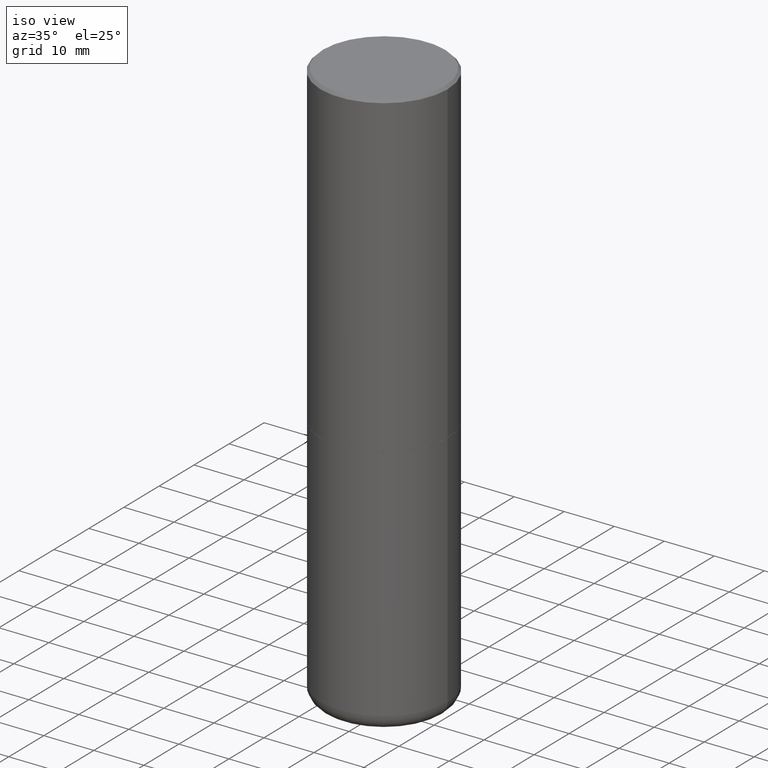
[diagram: clean part render]
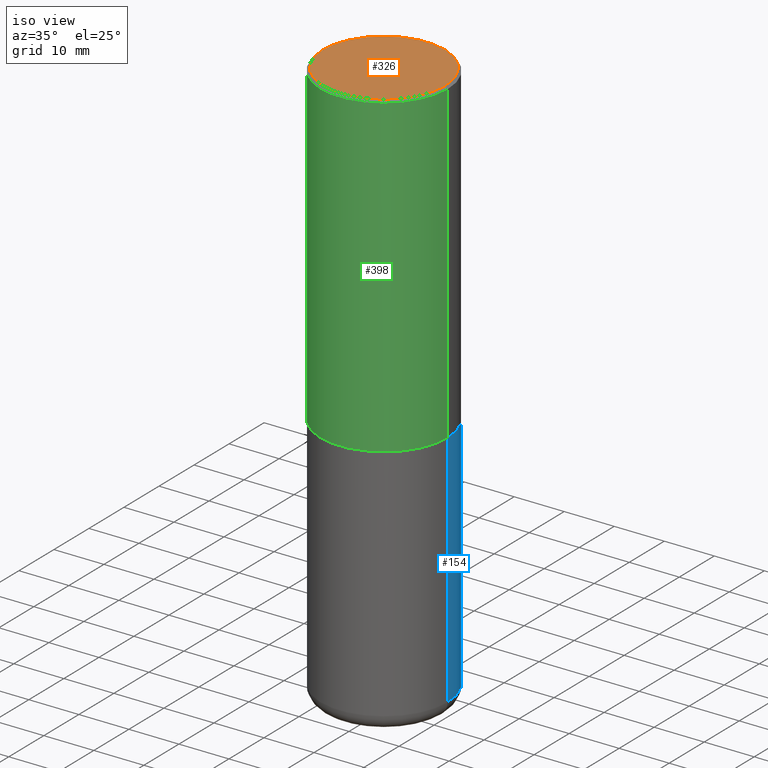
[diagram: same view with three faces highlighted in distinct colors, each labeled with its STEP entity id]
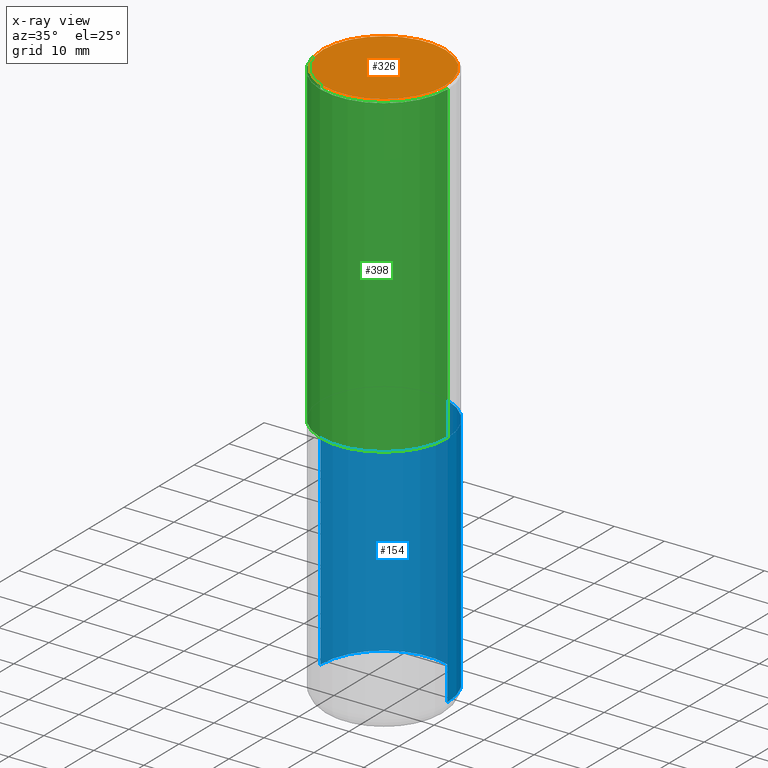
[diagram: x-ray of the same camera — body ghosted, the three highlighted faces saturated]
A machine part, iso view with three faces highlighted in distinct colors.
The next image is the same camera in x-ray (body ghosted, the three faces saturated) — at least one of them is partly hidden behind the body in this view.
Their STEP definitions:

[orange] entity #326 — the highlighted planar face has unit normal (0, -0, -1).
#38 = PLANE ( 'NONE',  #85 ) ;
#58 = EDGE_CURVE ( 'NONE', #250, #240, #161, .T. ) ;
#63 = FACE_OUTER_BOUND ( 'NONE', #364, .T. ) ;
#72 = ORIENTED_EDGE ( 'NONE', *, *, #293, .T. ) ;
#83 = DIRECTION ( 'NONE',  ( 1.000000000000000000, -6.982962677686266711E-15, 4.878011538933552085E-29 ) ) ;
#85 = AXIS2_PLACEMENT_3D ( 'NONE', #158, #219, #291 ) ;
#87 = ORIENTED_EDGE ( 'NONE', *, *, #58, .T. ) ;
#122 = DIRECTION ( 'NONE',  ( -2.445468806185136597E-29, 3.491481338843145583E-15, 1.000000000000000000 ) ) ;
#136 = CIRCLE ( 'NONE', #339, 0.4799999999999998157 ) ;
#158 = CARTESIAN_POINT ( 'NONE',  ( 3.351822085289406364E-15, 0.4799999999999998157, -1.547855667941696890E-15 ) ) ;
#161 = CIRCLE ( 'NONE', #282, 0.4799999999999998157 ) ;
#195 = CARTESIAN_POINT ( 'NONE',  ( 0.4799999999999998157, -3.396558832296481310E-15, 2.561107494060482809E-16 ) ) ;
#216 = CARTESIAN_POINT ( 'NONE',  ( -6.263108486011318684E-45, 8.942059022282684186E-31, 2.561107494060246644E-16 ) ) ;
#219 = DIRECTION ( 'NONE',  ( 2.438088387897960049E-29, -3.491481338843145188E-15, -1.000000000000000000 ) ) ;
#240 = VERTEX_POINT ( 'NONE', #195 ) ;
#243 = DIRECTION ( 'NONE',  ( 1.000000000000000000, -6.982962677686266711E-15, 4.878011538933552085E-29 ) ) ;
#247 = CARTESIAN_POINT ( 'NONE',  ( -6.263108486011318684E-45, 8.942059022282684186E-31, 2.561107494060246644E-16 ) ) ;
#250 = VERTEX_POINT ( 'NONE', #263 ) ;
#263 = CARTESIAN_POINT ( 'NONE',  ( -0.4799999999999998157, 3.386736898677839197E-15, 2.561107494060010972E-16 ) ) ;
#282 = AXIS2_PLACEMENT_3D ( 'NONE', #247, #371, #83 ) ;
#291 = DIRECTION ( 'NONE',  ( -1.000000000000000000, 6.982962677686265922E-15, -4.876176775795935793E-29 ) ) ;
#293 = EDGE_CURVE ( 'NONE', #240, #250, #136, .T. ) ;
#326 = ADVANCED_FACE ( 'NONE', ( #63 ), #38, .F. ) ;
#339 = AXIS2_PLACEMENT_3D ( 'NONE', #216, #122, #243 ) ;
#364 = EDGE_LOOP ( 'NONE', ( #87, #72 ) ) ;
#371 = DIRECTION ( 'NONE',  ( -2.445468806185136597E-29, 3.491481338843145583E-15, 1.000000000000000000 ) ) ;

[blue] entity #154 — the highlighted cylindrical surface (partial cylindrical patch) has radius 12.7 mm, axis along (-0, 0, 1).
#2 = VECTOR ( 'NONE', #333, 39.37007874015748143 ) ;
#5 = CARTESIAN_POINT ( 'NONE',  ( -0.4999999999999998335, -1.173997458533247776E-14, -4.379999999999999893 ) ) ;
#47 = DIRECTION ( 'NONE',  ( -2.445468806185136597E-29, 3.491481338843145583E-15, 1.000000000000000000 ) ) ;
#59 = CARTESIAN_POINT ( 'NONE',  ( 0.000000000000000000, 0.000000000000000000, 0.000000000000000000 ) ) ;
#79 = VERTEX_POINT ( 'NONE', #321 ) ;
#91 = CIRCLE ( 'NONE', #156, 0.5000000000000001110 ) ;
#100 = CARTESIAN_POINT ( 'NONE',  ( 6.113672015462842613E-29, -8.728703347107864943E-15, -2.500000000000000000 ) ) ;
#103 = ORIENTED_EDGE ( 'NONE', *, *, #197, .T. ) ;
#105 = CARTESIAN_POINT ( 'NONE',  ( -0.5000000000000000000, 3.552713678800500929E-15, -2.459467545127452891E-29 ) ) ;
#108 = CARTESIAN_POINT ( 'NONE',  ( 1.071115337109089838E-28, -1.529268826413297711E-14, -4.379999999999999893 ) ) ;
#113 = LINE ( 'NONE', #105, #259 ) ;
#126 = ORIENTED_EDGE ( 'NONE', *, *, #366, .T. ) ;
#142 = DIRECTION ( 'NONE',  ( -2.445468806185136597E-29, 3.491481338843145583E-15, 1.000000000000000000 ) ) ;
#154 = ADVANCED_FACE ( 'NONE', ( #387 ), #224, .T. ) ;
#156 = AXIS2_PLACEMENT_3D ( 'NONE', #108, #47, #212 ) ;
#169 = AXIS2_PLACEMENT_3D ( 'NONE', #59, #289, #319 ) ;
#183 = ORIENTED_EDGE ( 'NONE', *, *, #235, .F. ) ;
#186 = CIRCLE ( 'NONE', #325, 0.5000000000000000000 ) ;
#192 = CARTESIAN_POINT ( 'NONE',  ( -0.5000000000000000000, -8.457982126819920096E-15, -2.500000000000000000 ) ) ;
#197 = EDGE_CURVE ( 'NONE', #304, #307, #113, .T. ) ;
#202 = LINE ( 'NONE', #365, #2 ) ;
#212 = DIRECTION ( 'NONE',  ( 1.000000000000000000, -6.982962677686269077E-15, 0.000000000000000000 ) ) ;
#217 = ORIENTED_EDGE ( 'NONE', *, *, #382, .F. ) ;
#224 = CYLINDRICAL_SURFACE ( 'NONE', #169, 0.5000000000000000000 ) ;
#235 = EDGE_CURVE ( 'NONE', #245, #307, #186, .T. ) ;
#245 = VERTEX_POINT ( 'NONE', #298 ) ;
#259 = VECTOR ( 'NONE', #302, 39.37007874015748143 ) ;
#283 = EDGE_LOOP ( 'NONE', ( #126, #103, #183, #217 ) ) ;
#289 = DIRECTION ( 'NONE',  ( -2.445468806185136597E-29, 3.491481338843145583E-15, 1.000000000000000000 ) ) ;
#298 = CARTESIAN_POINT ( 'NONE',  ( 0.5000000000000000000, -1.222018468595099830E-14, -2.500000000000000000 ) ) ;
#299 = DIRECTION ( 'NONE',  ( 1.000000000000000000, -6.982962677686269077E-15, 0.000000000000000000 ) ) ;
#302 = DIRECTION ( 'NONE',  ( -2.445468806185136877E-29, 3.491481338843145188E-15, 1.000000000000000000 ) ) ;
#304 = VERTEX_POINT ( 'NONE', #5 ) ;
#307 = VERTEX_POINT ( 'NONE', #192 ) ;
#319 = DIRECTION ( 'NONE',  ( 1.000000000000000000, -6.982962677686266711E-15, 4.876176775795935793E-29 ) ) ;
#321 = CARTESIAN_POINT ( 'NONE',  ( 0.4999999999999998335, -1.878416960297611046E-14, -4.379999999999999893 ) ) ;
#325 = AXIS2_PLACEMENT_3D ( 'NONE', #100, #142, #299 ) ;
#333 = DIRECTION ( 'NONE',  ( -2.445468806185136877E-29, 3.491481338843145188E-15, 1.000000000000000000 ) ) ;
#365 = CARTESIAN_POINT ( 'NONE',  ( 0.5000000000000000000, -3.491481338843133355E-15, 2.438088387897967896E-29 ) ) ;
#366 = EDGE_CURVE ( 'NONE', #79, #304, #91, .T. ) ;
#382 = EDGE_CURVE ( 'NONE', #79, #245, #202, .T. ) ;
#387 = FACE_OUTER_BOUND ( 'NONE', #283, .T. ) ;

[green] entity #398 — the highlighted cylindrical surface (partial cylindrical patch) has radius 12.7 mm, axis along (-0, 0, 1).
#21 = DIRECTION ( 'NONE',  ( -2.445468806185136597E-29, 3.491481338843145583E-15, 1.000000000000000000 ) ) ;
#22 = VERTEX_POINT ( 'NONE', #25 ) ;
#25 = CARTESIAN_POINT ( 'NONE',  ( -0.5000000000000002220, -8.448070674724393209E-16, -2.499000000000000110 ) ) ;
#41 = ORIENTED_EDGE ( 'NONE', *, *, #124, .F. ) ;
#80 = CARTESIAN_POINT ( 'NONE',  ( 0.5000000000000002220, -1.221669320461215845E-14, -2.499000000000000110 ) ) ;
#115 = CARTESIAN_POINT ( 'NONE',  ( 0.5000000000000001110, -3.491481338843134539E-15, 2.438088387897968457E-29 ) ) ;
#124 = EDGE_CURVE ( 'NONE', #22, #344, #253, .T. ) ;
#128 = AXIS2_PLACEMENT_3D ( 'NONE', #203, #334, #174 ) ;
#140 = CARTESIAN_POINT ( 'NONE',  ( -0.5000000000000001110, 3.421651712066270452E-15, -0.02000000000000010797 ) ) ;
#172 = CYLINDRICAL_SURFACE ( 'NONE', #234, 0.5000000000000001110 ) ;
#174 = DIRECTION ( 'NONE',  ( 1.000000000000000000, -6.982962677686265922E-15, 0.000000000000000000 ) ) ;
#175 = DIRECTION ( 'NONE',  ( 1.000000000000000000, -6.982962677686267499E-15, 4.876176775795935793E-29 ) ) ;
#177 = CARTESIAN_POINT ( 'NONE',  ( 0.000000000000000000, 0.000000000000000000, 0.000000000000000000 ) ) ;
#194 = VECTOR ( 'NONE', #379, 39.37007874015748143 ) ;
#203 = CARTESIAN_POINT ( 'NONE',  ( 4.890937612370299433E-31, -6.982962677686328587E-17, -0.02000000000000010797 ) ) ;
#218 = EDGE_CURVE ( 'NONE', #22, #347, #355, .T. ) ;
#229 = CARTESIAN_POINT ( 'NONE',  ( -0.5000000000000001110, 3.552713678800501718E-15, -2.459467545127453732E-29 ) ) ;
#231 = EDGE_LOOP ( 'NONE', ( #41, #348, #316, #266 ) ) ;
#234 = AXIS2_PLACEMENT_3D ( 'NONE', #177, #21, #175 ) ;
#244 = VECTOR ( 'NONE', #273, 39.37007874015748143 ) ;
#253 = LINE ( 'NONE', #229, #194 ) ;
#266 = ORIENTED_EDGE ( 'NONE', *, *, #279, .F. ) ;
#271 = DIRECTION ( 'NONE',  ( -2.445468806185136597E-29, 3.491481338843145583E-15, 1.000000000000000000 ) ) ;
#273 = DIRECTION ( 'NONE',  ( -2.445468806185136877E-29, 3.491481338843145188E-15, 1.000000000000000000 ) ) ;
#279 = EDGE_CURVE ( 'NONE', #344, #281, #359, .T. ) ;
#281 = VERTEX_POINT ( 'NONE', #306 ) ;
#303 = AXIS2_PLACEMENT_3D ( 'NONE', #392, #271, #358 ) ;
#306 = CARTESIAN_POINT ( 'NONE',  ( 0.5000000000000001110, -3.500078625662629868E-15, -0.02000000000000010797 ) ) ;
#310 = LINE ( 'NONE', #115, #244 ) ;
#316 = ORIENTED_EDGE ( 'NONE', *, *, #405, .T. ) ;
#334 = DIRECTION ( 'NONE',  ( -2.445468806185136597E-29, 3.491481338843145583E-15, 1.000000000000000000 ) ) ;
#342 = FACE_OUTER_BOUND ( 'NONE', #231, .T. ) ;
#344 = VERTEX_POINT ( 'NONE', #140 ) ;
#347 = VERTEX_POINT ( 'NONE', #80 ) ;
#348 = ORIENTED_EDGE ( 'NONE', *, *, #218, .T. ) ;
#355 = CIRCLE ( 'NONE', #303, 0.5000000000000002220 ) ;
#358 = DIRECTION ( 'NONE',  ( 1.000000000000000000, -6.982962677686269866E-15, 0.000000000000000000 ) ) ;
#359 = CIRCLE ( 'NONE', #128, 0.5000000000000001110 ) ;
#379 = DIRECTION ( 'NONE',  ( -2.445468806185136877E-29, 3.491481338843145188E-15, 1.000000000000000000 ) ) ;
#392 = CARTESIAN_POINT ( 'NONE',  ( 6.111226546656657010E-29, -8.725211865769021935E-15, -2.499000000000000110 ) ) ;
#398 = ADVANCED_FACE ( 'NONE', ( #342 ), #172, .T. ) ;
#405 = EDGE_CURVE ( 'NONE', #347, #281, #310, .T. ) ;